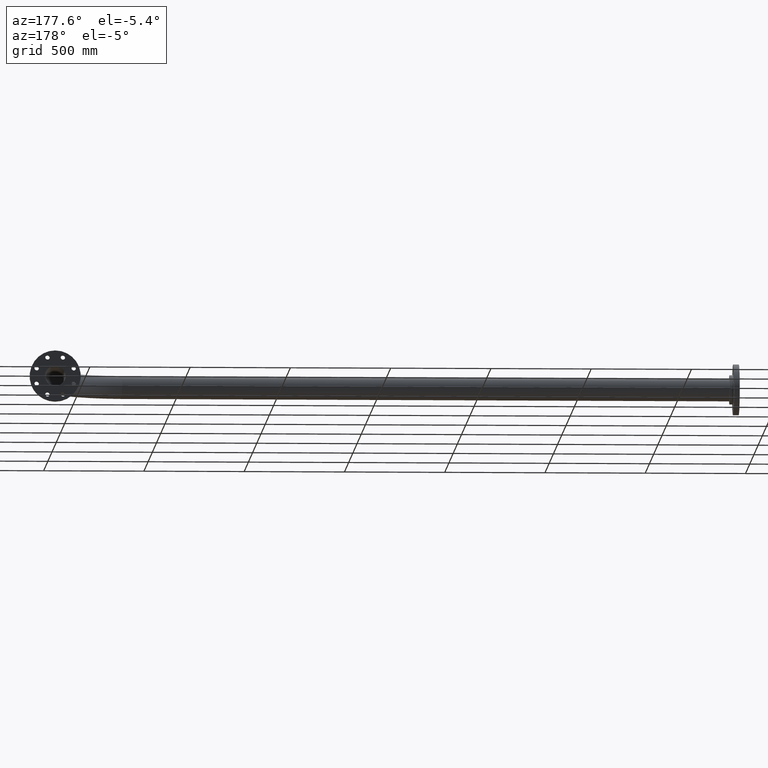
[diagram: clean part render]
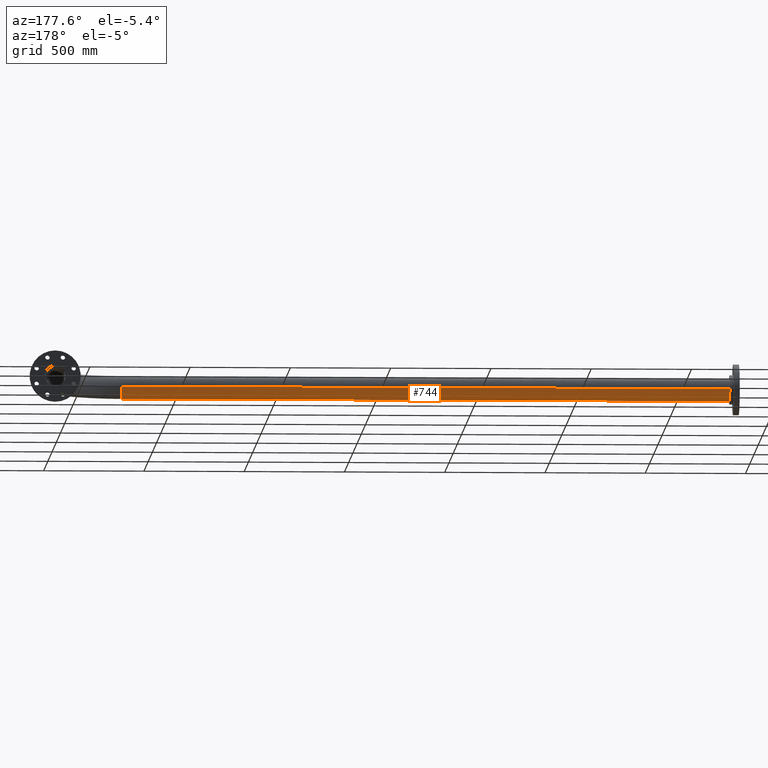
[diagram: same view with one face highlighted and labeled with its STEP entity id]
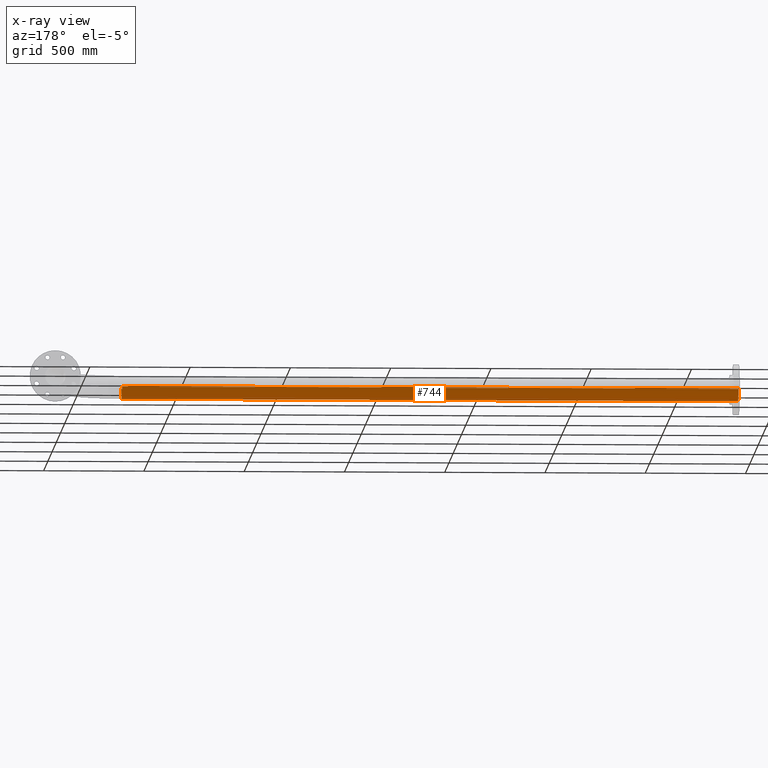
[diagram: x-ray of the same camera — body ghosted, the highlighted face saturated]
A machine part, auxiliary view. The second image highlights one B-rep face of the part: STEP entity #744.
The next image is the same camera in x-ray: the body ghosted, the highlighted face saturated — about 0% of this face is hidden behind the body in this view.
In plain terms, the highlighted cylindrical surface (edge-blend (fillet) strip) has radius 57.15 mm, axis along (-1, 0, -0).
Its self-contained STEP definition (entity closure, byte-faithful):
#25 = EDGE_CURVE ( 'NONE', #1548, #160, #1583, .T. ) ;
#54 = AXIS2_PLACEMENT_3D ( 'NONE', #1579, #587, #65 ) ;
#65 = DIRECTION ( 'NONE',  ( 0.000000000000000000, 1.000000000000000000, 0.000000000000000000 ) ) ;
#133 = DIRECTION ( 'NONE',  ( 0.000000000000000000, 1.000000000000000000, 1.732194188082238400E-17 ) ) ;
#160 = VERTEX_POINT ( 'NONE', #268 ) ;
#187 = VERTEX_POINT ( 'NONE', #667 ) ;
#191 = LINE ( 'NONE', #847, #925 ) ;
#248 = DIRECTION ( 'NONE',  ( 0.000000000000000000, -1.000000000000000000, 0.000000000000000000 ) ) ;
#262 = CARTESIAN_POINT ( 'NONE',  ( -1642.000000000000000, -57.15000000000031122, 6.998856457126432299E-15 ) ) ;
#268 = CARTESIAN_POINT ( 'NONE',  ( -4716.000000000000000, -57.15000000000000568, 6.998856457126395222E-15 ) ) ;
#273 = AXIS2_PLACEMENT_3D ( 'NONE', #814, #1337, #133 ) ;
#354 = VECTOR ( 'NONE', #1695, 1000.000000000000000 ) ;
#434 = DIRECTION ( 'NONE',  ( 1.000000000000000000, -6.712647246080441804E-19, 2.958228394578794270E-31 ) ) ;
#507 = EDGE_LOOP ( 'NONE', ( #655, #1142, #582, #1669 ) ) ;
#582 = ORIENTED_EDGE ( 'NONE', *, *, #1703, .T. ) ;
#587 = DIRECTION ( 'NONE',  ( 1.000000000000000000, -6.712647246080441804E-19, 2.958228394578794270E-31 ) ) ;
#631 = CYLINDRICAL_SURFACE ( 'NONE', #54, 57.15000000000000568 ) ;
#655 = ORIENTED_EDGE ( 'NONE', *, *, #849, .F. ) ;
#667 = CARTESIAN_POINT ( 'NONE',  ( -1642.000000000000000, 57.14999999999994174, 9.899489784884591126E-16 ) ) ;
#669 = CARTESIAN_POINT ( 'NONE',  ( -4716.000000000000000, 3.165684441250926505E-15, -1.183291357831517708E-27 ) ) ;
#744 = ADVANCED_FACE ( 'NONE', ( #763 ), #631, .T. ) ;
#763 = FACE_OUTER_BOUND ( 'NONE', #507, .T. ) ;
#814 = CARTESIAN_POINT ( 'NONE',  ( -1642.000000000000000, -1.822986206434503000E-13, -5.423418723394456162E-28 ) ) ;
#847 = CARTESIAN_POINT ( 'NONE',  ( -4716.000000000000000, 57.15000000000000568, -1.183291357831517708E-27 ) ) ;
#849 = EDGE_CURVE ( 'NONE', #160, #1015, #894, .T. ) ;
#894 = LINE ( 'NONE', #1169, #354 ) ;
#907 = EDGE_CURVE ( 'NONE', #1015, #187, #1407, .T. ) ;
#925 = VECTOR ( 'NONE', #434, 1000.000000000000000 ) ;
#1015 = VERTEX_POINT ( 'NONE', #262 ) ;
#1142 = ORIENTED_EDGE ( 'NONE', *, *, #25, .F. ) ;
#1169 = CARTESIAN_POINT ( 'NONE',  ( -4716.000000000000000, -57.15000000000000568, 6.998856457125940839E-15 ) ) ;
#1316 = CARTESIAN_POINT ( 'NONE',  ( -4716.000000000000000, 57.15000000000000568, -7.286116535847569391E-28 ) ) ;
#1337 = DIRECTION ( 'NONE',  ( 1.000000000000000000, 1.110223024625155678E-16, 5.916456789157588541E-31 ) ) ;
#1407 = CIRCLE ( 'NONE', #273, 57.15000000000012648 ) ;
#1478 = DIRECTION ( 'NONE',  ( -1.000000000000000000, 6.712647246080441804E-19, -2.958228394578794270E-31 ) ) ;
#1548 = VERTEX_POINT ( 'NONE', #1316 ) ;
#1579 = CARTESIAN_POINT ( 'NONE',  ( -4716.000000000000000, 3.165684441250926505E-15, -1.183291357831517708E-27 ) ) ;
#1583 = CIRCLE ( 'NONE', #1690, 57.15000000000000568 ) ;
#1669 = ORIENTED_EDGE ( 'NONE', *, *, #907, .F. ) ;
#1690 = AXIS2_PLACEMENT_3D ( 'NONE', #669, #1478, #248 ) ;
#1695 = DIRECTION ( 'NONE',  ( 1.000000000000000000, -6.712647246080441804E-19, 2.958228394578794270E-31 ) ) ;
#1703 = EDGE_CURVE ( 'NONE', #1548, #187, #191, .T. ) ;